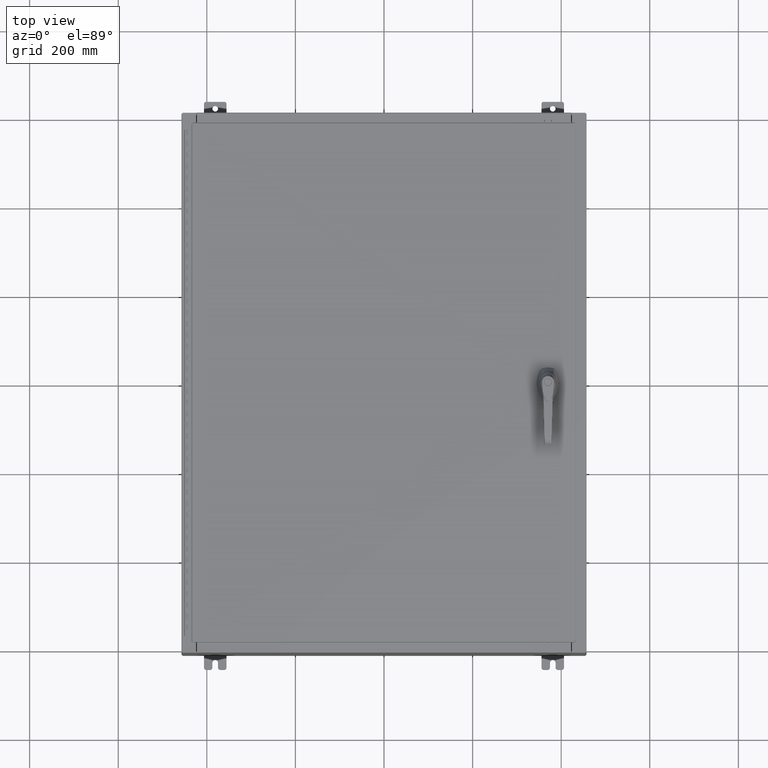
[diagram: clean part render]
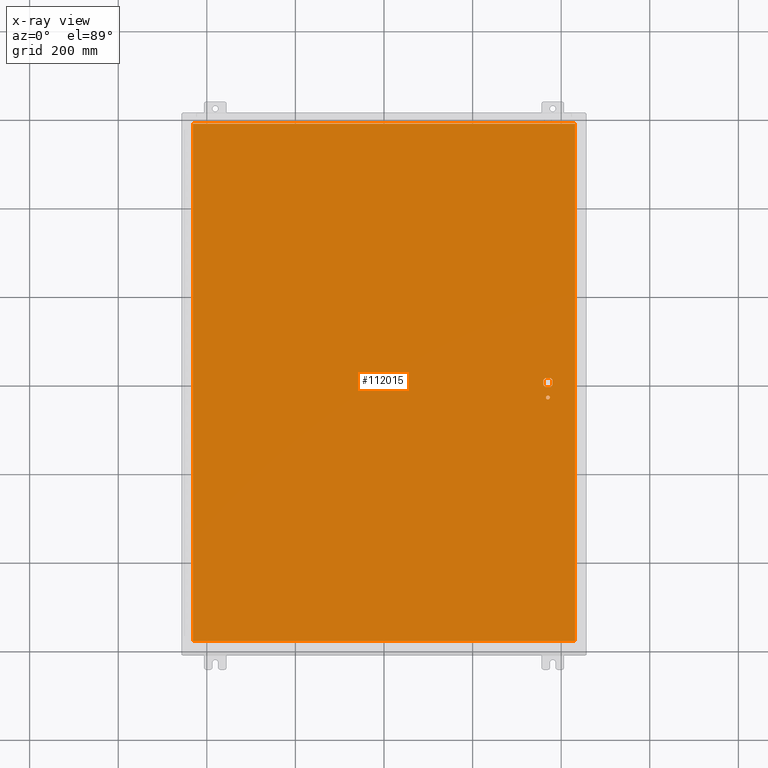
[diagram: x-ray — body ghosted, one internal face saturated and labeled with its STEP entity id]
A machine part, top view, then the same camera in x-ray: the body is ghosted and one INTERNAL B-rep face — a face not visible from any outside direction — is saturated and labeled: STEP entity #112015.
In plain terms, the highlighted planar face has unit normal (0, 0, -1).
Its self-contained STEP definition (entity closure, byte-faithful):
#2030 = AXIS2_PLACEMENT_3D ( 'NONE', #122007, #59914, #132447 ) ;
#2342 = DIRECTION ( 'NONE',  ( -1.000000000000000000, 0.0000000000000000000, 0.0000000000000000000 ) ) ;
#2947 = VERTEX_POINT ( 'NONE', #5258 ) ;
#3622 = EDGE_CURVE ( 'NONE', #2947, #64190, #104925, .T. ) ;
#5258 = CARTESIAN_POINT ( 'NONE',  ( 16.99029999999999800, 23.00630000000000300, -0.07470000000000000300 ) ) ;
#5569 = CARTESIAN_POINT ( 'NONE',  ( -16.99029999999999400, 23.00630000000000300, -0.07470000000000000300 ) ) ;
#7064 = LINE ( 'NONE', #123561, #110858 ) ;
#7754 = VERTEX_POINT ( 'NONE', #115785 ) ;
#8392 = ORIENTED_EDGE ( 'NONE', *, *, #109014, .T. ) ;
#9646 = CARTESIAN_POINT ( 'NONE',  ( 0.0000000000000000000, 0.0000000000000000000, -0.07470000000000000300 ) ) ;
#13830 = AXIS2_PLACEMENT_3D ( 'NONE', #9646, #134303, #72165 ) ;
#13990 = ORIENTED_EDGE ( 'NONE', *, *, #50169, .F. ) ;
#16061 = DIRECTION ( 'NONE',  ( -0.0000000000000000000, -0.0000000000000000000, 1.000000000000000000 ) ) ;
#16364 = CARTESIAN_POINT ( 'NONE',  ( 14.57799999999999900, 0.0000000000000000000, -0.07470000000000003000 ) ) ;
#18015 = VECTOR ( 'NONE', #64278, 39.37007874015748100 ) ;
#22167 = CARTESIAN_POINT ( 'NONE',  ( 14.17500000000007400, 0.0000000000000000000, -0.07470000000000003000 ) ) ;
#24425 = ORIENTED_EDGE ( 'NONE', *, *, #91847, .T. ) ;
#24797 = EDGE_CURVE ( 'NONE', #96937, #74788, #89967, .T. ) ;
#25341 = EDGE_CURVE ( 'NONE', #66212, #96937, #81734, .T. ) ;
#25624 = LINE ( 'NONE', #22167, #108424 ) ;
#26253 = AXIS2_PLACEMENT_3D ( 'NONE', #35159, #107720, #45607 ) ;
#26404 = DIRECTION ( 'NONE',  ( 0.0000000000000000000, 1.000000000000000000, 0.0000000000000000000 ) ) ;
#26792 = DIRECTION ( 'NONE',  ( -1.000000000000000000, -1.776356839400246700E-015, 0.0000000000000000000 ) ) ;
#26858 = VERTEX_POINT ( 'NONE', #39499 ) ;
#26886 = ORIENTED_EDGE ( 'NONE', *, *, #102288, .T. ) ;
#31440 = ORIENTED_EDGE ( 'NONE', *, *, #56195, .T. ) ;
#32785 = VERTEX_POINT ( 'NONE', #131943 ) ;
#35159 = CARTESIAN_POINT ( 'NONE',  ( 14.57799999999999900, 0.0000000000000000000, -0.07470000000000003000 ) ) ;
#38629 = FACE_BOUND ( 'NONE', #78851, .T. ) ;
#39470 = DIRECTION ( 'NONE',  ( -0.0000000000000000000, -0.0000000000000000000, 1.000000000000000000 ) ) ;
#39499 = CARTESIAN_POINT ( 'NONE',  ( 14.40649999999999800, -1.338000000000000100, -0.07470000000000003000 ) ) ;
#40434 = DIRECTION ( 'NONE',  ( -0.0000000000000000000, -0.0000000000000000000, 1.000000000000000000 ) ) ;
#40810 = ORIENTED_EDGE ( 'NONE', *, *, #130805, .F. ) ;
#43428 = CARTESIAN_POINT ( 'NONE',  ( -16.99029999999999800, -23.00630000000000300, -0.07469999999999804600 ) ) ;
#45607 = DIRECTION ( 'NONE',  ( -1.000000000000000000, -5.329070518200740300E-015, 0.0000000000000000000 ) ) ;
#48203 = VECTOR ( 'NONE', #63313, 39.37007874015748100 ) ;
#48877 = CARTESIAN_POINT ( 'NONE',  ( -16.99029999999999800, -23.00630000000000000, -0.07470000000000000300 ) ) ;
#50169 = EDGE_CURVE ( 'NONE', #7754, #2947, #105892, .T. ) ;
#51040 = ORIENTED_EDGE ( 'NONE', *, *, #108780, .T. ) ;
#51316 = PLANE ( 'NONE',  #13830 ) ;
#52017 = CARTESIAN_POINT ( 'NONE',  ( 14.17500000000007400, -0.2002273707563079800, -0.07470000000000003000 ) ) ;
#52413 = ORIENTED_EDGE ( 'NONE', *, *, #124062, .T. ) ;
#54539 = CARTESIAN_POINT ( 'NONE',  ( 0.0000000000000000000, -0.4029999999999252000, -0.07470000000000003000 ) ) ;
#55620 = ORIENTED_EDGE ( 'NONE', *, *, #85412, .F. ) ;
#56195 = EDGE_CURVE ( 'NONE', #129750, #66212, #25624, .T. ) ;
#59914 = DIRECTION ( 'NONE',  ( -0.0000000000000000000, -0.0000000000000000000, 1.000000000000000000 ) ) ;
#60585 = CARTESIAN_POINT ( 'NONE',  ( 14.17500000000007400, 0.2002273707563075900, -0.07470000000000003000 ) ) ;
#61180 = CARTESIAN_POINT ( 'NONE',  ( 14.98099999999992700, -0.2002273707563067300, -0.07470000000000003000 ) ) ;
#62968 = FACE_BOUND ( 'NONE', #69746, .T. ) ;
#63313 = DIRECTION ( 'NONE',  ( 0.0000000000000000000, -1.000000000000000000, 0.0000000000000000000 ) ) ;
#63479 = LINE ( 'NONE', #126517, #115374 ) ;
#63559 = CIRCLE ( 'NONE', #126375, 0.4499999999999168000 ) ;
#64190 = VERTEX_POINT ( 'NONE', #5569 ) ;
#64278 = DIRECTION ( 'NONE',  ( 1.000000000000000000, -0.0000000000000000000, -0.0000000000000000000 ) ) ;
#65627 = CARTESIAN_POINT ( 'NONE',  ( 14.77822737075630900, 0.4029999999999250300, -0.07470000000000003000 ) ) ;
#65849 = AXIS2_PLACEMENT_3D ( 'NONE', #78180, #16061, #88625 ) ;
#66212 = VERTEX_POINT ( 'NONE', #52017 ) ;
#67604 = CARTESIAN_POINT ( 'NONE',  ( 16.99029999999999800, 23.00630000000001000, -0.07469999999999804600 ) ) ;
#69746 = EDGE_LOOP ( 'NONE', ( #26886, #55620, #52413, #8392, #131210, #31440, #133441, #117382 ) ) ;
#70110 = VERTEX_POINT ( 'NONE', #108480 ) ;
#72165 = DIRECTION ( 'NONE',  ( -1.000000000000000000, 0.0000000000000000000, -0.0000000000000000000 ) ) ;
#73196 = LINE ( 'NONE', #43428, #18015 ) ;
#74788 = VERTEX_POINT ( 'NONE', #83648 ) ;
#75535 = AXIS2_PLACEMENT_3D ( 'NONE', #102536, #40434, #112962 ) ;
#78180 = CARTESIAN_POINT ( 'NONE',  ( 14.57799999999999900, -1.338000000000000100, -0.07470000000000003000 ) ) ;
#78851 = EDGE_LOOP ( 'NONE', ( #51040, #24425 ) ) ;
#80965 = ORIENTED_EDGE ( 'NONE', *, *, #93067, .F. ) ;
#81734 = CIRCLE ( 'NONE', #2030, 0.4499999999999168000 ) ;
#83648 = CARTESIAN_POINT ( 'NONE',  ( 14.77822737075630900, -0.4029999999999252000, -0.07470000000000003000 ) ) ;
#84271 = DIRECTION ( 'NONE',  ( 0.0000000000000000000, -1.000000000000000000, 0.0000000000000000000 ) ) ;
#85143 = EDGE_CURVE ( 'NONE', #70110, #129750, #99535, .T. ) ;
#85412 = EDGE_CURVE ( 'NONE', #32785, #89416, #7064, .T. ) ;
#86738 = DIRECTION ( 'NONE',  ( 1.000000000000000000, 0.0000000000000000000, 0.0000000000000000000 ) ) ;
#88566 = CARTESIAN_POINT ( 'NONE',  ( 16.99029999999999800, -23.00630000000000300, -0.07470000000000019700 ) ) ;
#88625 = DIRECTION ( 'NONE',  ( -1.000000000000000000, 0.0000000000000000000, 0.0000000000000000000 ) ) ;
#88951 = ORIENTED_EDGE ( 'NONE', *, *, #3622, .F. ) ;
#88959 = DIRECTION ( 'NONE',  ( -0.0000000000000000000, -0.0000000000000000000, 1.000000000000000000 ) ) ;
#89285 = AXIS2_PLACEMENT_3D ( 'NONE', #101586, #39470, #112012 ) ;
#89416 = VERTEX_POINT ( 'NONE', #61180 ) ;
#89967 = LINE ( 'NONE', #54539, #114248 ) ;
#90585 = FACE_OUTER_BOUND ( 'NONE', #109547, .T. ) ;
#91847 = EDGE_CURVE ( 'NONE', #26858, #104644, #126233, .T. ) ;
#92232 = CARTESIAN_POINT ( 'NONE',  ( 14.37777262924369000, -0.4029999999999250300, -0.07470000000000003000 ) ) ;
#92720 = VERTEX_POINT ( 'NONE', #65627 ) ;
#93067 = EDGE_CURVE ( 'NONE', #64190, #99781, #100092, .T. ) ;
#93911 = CARTESIAN_POINT ( 'NONE',  ( 14.74950000000000100, -1.338000000000000100, -0.07470000000000003000 ) ) ;
#96937 = VERTEX_POINT ( 'NONE', #92232 ) ;
#99535 = CIRCLE ( 'NONE', #26253, 0.4499999999999168000 ) ;
#99781 = VERTEX_POINT ( 'NONE', #48877 ) ;
#100092 = LINE ( 'NONE', #105008, #48203 ) ;
#101586 = CARTESIAN_POINT ( 'NONE',  ( 14.57799999999999900, 0.0000000000000000000, -0.07470000000000003000 ) ) ;
#101658 = VECTOR ( 'NONE', #119303, 39.37007874015748100 ) ;
#102288 = EDGE_CURVE ( 'NONE', #74788, #89416, #63559, .T. ) ;
#102536 = CARTESIAN_POINT ( 'NONE',  ( 14.57799999999999900, -1.338000000000000100, -0.07470000000000003000 ) ) ;
#102627 = VECTOR ( 'NONE', #26404, 39.37007874015748100 ) ;
#104644 = VERTEX_POINT ( 'NONE', #93911 ) ;
#104925 = LINE ( 'NONE', #67604, #101658 ) ;
#105008 = CARTESIAN_POINT ( 'NONE',  ( -16.99029999999999400, 23.00630000000001000, -0.07470000000000129300 ) ) ;
#105892 = LINE ( 'NONE', #88566, #102627 ) ;
#107720 = DIRECTION ( 'NONE',  ( -0.0000000000000000000, -0.0000000000000000000, 1.000000000000000000 ) ) ;
#108424 = VECTOR ( 'NONE', #84271, 39.37007874015748100 ) ;
#108480 = CARTESIAN_POINT ( 'NONE',  ( 14.37777262924369000, 0.4029999999999252000, -0.07470000000000003000 ) ) ;
#108780 = EDGE_CURVE ( 'NONE', #104644, #26858, #113813, .T. ) ;
#109014 = EDGE_CURVE ( 'NONE', #92720, #70110, #63479, .T. ) ;
#109547 = EDGE_LOOP ( 'NONE', ( #13990, #40810, #80965, #88951 ) ) ;
#110858 = VECTOR ( 'NONE', #113114, 39.37007874015748100 ) ;
#112012 = DIRECTION ( 'NONE',  ( -1.000000000000000000, -5.329070518200740300E-015, 0.0000000000000000000 ) ) ;
#112015 = ADVANCED_FACE ( 'NONE', ( #38629, #90585, #62968 ), #51316, .T. ) ;
#112233 = CIRCLE ( 'NONE', #89285, 0.4499999999999168000 ) ;
#112962 = DIRECTION ( 'NONE',  ( -1.000000000000000000, 0.0000000000000000000, 0.0000000000000000000 ) ) ;
#113114 = DIRECTION ( 'NONE',  ( 5.457491617345625800E-015, -1.000000000000000000, 0.0000000000000000000 ) ) ;
#113813 = CIRCLE ( 'NONE', #75535, 0.1715000000000011500 ) ;
#114248 = VECTOR ( 'NONE', #86738, 39.37007874015748100 ) ;
#115374 = VECTOR ( 'NONE', #2342, 39.37007874015748100 ) ;
#115785 = CARTESIAN_POINT ( 'NONE',  ( 16.99029999999999800, -23.00630000000000000, -0.07470000000000000300 ) ) ;
#117382 = ORIENTED_EDGE ( 'NONE', *, *, #24797, .T. ) ;
#119303 = DIRECTION ( 'NONE',  ( -1.000000000000000000, -0.0000000000000000000, -0.0000000000000000000 ) ) ;
#122007 = CARTESIAN_POINT ( 'NONE',  ( 14.57799999999999900, 0.0000000000000000000, -0.07470000000000003000 ) ) ;
#123561 = CARTESIAN_POINT ( 'NONE',  ( 14.98099999999992700, 8.175868191945441800E-014, -0.07470000000000003000 ) ) ;
#124062 = EDGE_CURVE ( 'NONE', #32785, #92720, #112233, .T. ) ;
#126233 = CIRCLE ( 'NONE', #65849, 0.1715000000000011500 ) ;
#126375 = AXIS2_PLACEMENT_3D ( 'NONE', #16364, #88959, #26792 ) ;
#126517 = CARTESIAN_POINT ( 'NONE',  ( 0.0000000000000000000, 0.4029999999999252000, -0.07470000000000003000 ) ) ;
#129750 = VERTEX_POINT ( 'NONE', #60585 ) ;
#130805 = EDGE_CURVE ( 'NONE', #99781, #7754, #73196, .T. ) ;
#131210 = ORIENTED_EDGE ( 'NONE', *, *, #85143, .T. ) ;
#131943 = CARTESIAN_POINT ( 'NONE',  ( 14.98099999999992700, 0.2002273707563075900, -0.07470000000000003000 ) ) ;
#132447 = DIRECTION ( 'NONE',  ( -1.000000000000000000, -1.776356839400246700E-015, 0.0000000000000000000 ) ) ;
#133441 = ORIENTED_EDGE ( 'NONE', *, *, #25341, .T. ) ;
#134303 = DIRECTION ( 'NONE',  ( 0.0000000000000000000, 0.0000000000000000000, -1.000000000000000000 ) ) ;